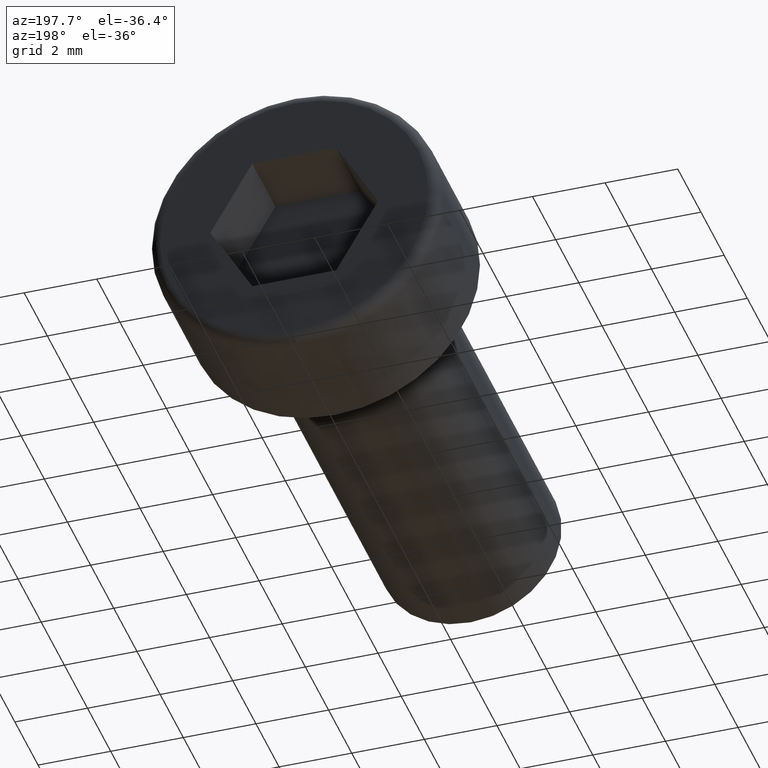
[diagram: clean part render]
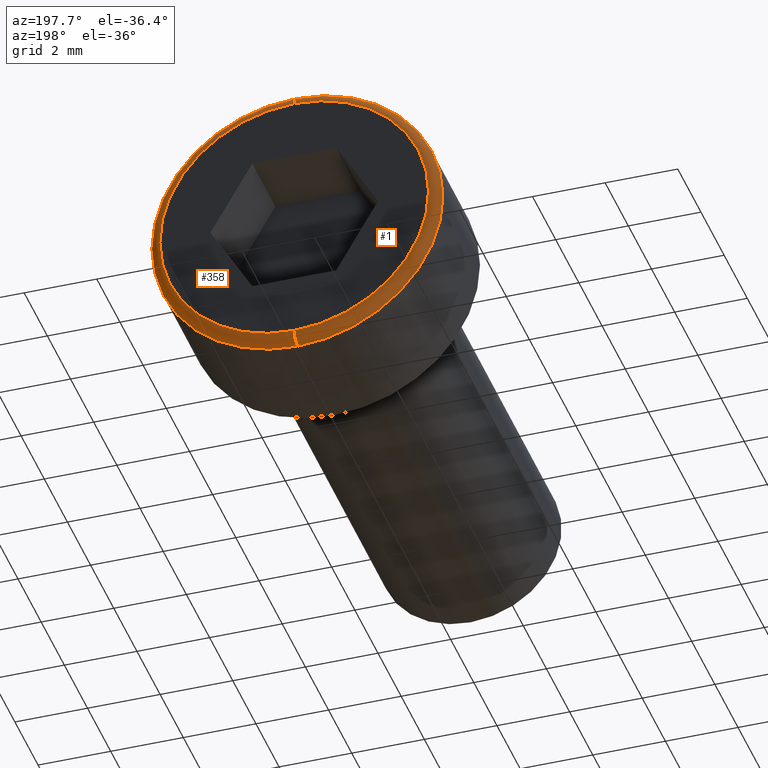
[diagram: same view with one multi-face feature highlighted, each face labeled with its STEP entity id]
A machine part, auxiliary view. The highlighted faces form ONE feature: a constant-radius fillet chain: 2 tangent blend faces with common blend radius 0.3 mm. The faces share edges in the B-rep.
Their STEP definitions:
[1] entity #1 (Torus):
#1 = ADVANCED_FACE ( 'NONE', ( #290 ), #406, .T. ) ;
#8 = CIRCLE ( 'NONE', #462, 0.2999999999999999300 ) ;
#11 = CIRCLE ( 'NONE', #463, 4.000000000000000000 ) ;
#18 = DIRECTION ( 'NONE',  ( 1.224646799147353200E-016, 0.0000000000000000000, -1.000000000000000000 ) ) ;
#19 = DIRECTION ( 'NONE',  ( 1.000000000000000000, -0.0000000000000000000, 1.224646799147353200E-016 ) ) ;
#20 = CARTESIAN_POINT ( 'NONE',  ( 4.531193156845206200E-016, 3.200000000000000200, -3.700000000000000200 ) ) ;
#46 = DIRECTION ( 'NONE',  ( 0.0000000000000000000, 0.0000000000000000000, 1.000000000000000000 ) ) ;
#48 = DIRECTION ( 'NONE',  ( -0.0000000000000000000, -1.000000000000000000, -0.0000000000000000000 ) ) ;
#52 = CARTESIAN_POINT ( 'NONE',  ( 0.0000000000000000000, 3.200000000000000200, 0.0000000000000000000 ) ) ;
#55 = DIRECTION ( 'NONE',  ( -1.000000000000000000, 0.0000000000000000000, 0.0000000000000000000 ) ) ;
#77 = CARTESIAN_POINT ( 'NONE',  ( 0.0000000000000000000, 3.200000000000000200, 3.700000000000000200 ) ) ;
#147 = DIRECTION ( 'NONE',  ( 0.0000000000000000000, 0.0000000000000000000, 1.000000000000000000 ) ) ;
#148 = DIRECTION ( 'NONE',  ( 0.0000000000000000000, 1.000000000000000000, 0.0000000000000000000 ) ) ;
#149 = CARTESIAN_POINT ( 'NONE',  ( 0.0000000000000000000, 3.500000000000000000, 0.0000000000000000000 ) ) ;
#185 = DIRECTION ( 'NONE',  ( 0.0000000000000000000, 0.0000000000000000000, 1.000000000000000000 ) ) ;
#187 = CARTESIAN_POINT ( 'NONE',  ( 0.0000000000000000000, 3.500000000000000000, 3.700000000000000200 ) ) ;
#200 = CARTESIAN_POINT ( 'NONE',  ( 4.714890176717309500E-016, 3.500000000000000000, -3.700000000000000200 ) ) ;
#202 = CARTESIAN_POINT ( 'NONE',  ( 4.898587196589412800E-016, 3.200000000000000200, 4.000000000000000000 ) ) ;
#209 = CIRCLE ( 'NONE', #471, 3.700000000000000200 ) ;
#290 = FACE_OUTER_BOUND ( 'NONE', #408, .T. ) ;
#291 = ORIENTED_EDGE ( 'NONE', *, *, #418, .T. ) ;
#293 = ORIENTED_EDGE ( 'NONE', *, *, #419, .F. ) ;
#295 = ORIENTED_EDGE ( 'NONE', *, *, #421, .F. ) ;
#296 = CIRCLE ( 'NONE', #465, 0.2999999999999999300 ) ;
#304 = DIRECTION ( 'NONE',  ( 0.0000000000000000000, 0.0000000000000000000, 1.000000000000000000 ) ) ;
#311 = CARTESIAN_POINT ( 'NONE',  ( 0.0000000000000000000, 3.200000000000000200, 0.0000000000000000000 ) ) ;
#312 = DIRECTION ( 'NONE',  ( 0.0000000000000000000, 1.000000000000000000, 0.0000000000000000000 ) ) ;
#315 = CARTESIAN_POINT ( 'NONE',  ( 0.0000000000000000000, 3.200000000000000200, -4.000000000000000000 ) ) ;
#320 = VERTEX_POINT ( 'NONE', #315 ) ;
#337 = VERTEX_POINT ( 'NONE', #202 ) ;
#340 = VERTEX_POINT ( 'NONE', #200 ) ;
#347 = VERTEX_POINT ( 'NONE', #187 ) ;
#406 = TOROIDAL_SURFACE ( 'NONE', #450, 3.700000000000000200, 0.2999999999999999900 ) ;
#408 = EDGE_LOOP ( 'NONE', ( #295, #293, #291, #523 ) ) ;
#418 = EDGE_CURVE ( 'NONE', #337, #347, #8, .T. ) ;
#419 = EDGE_CURVE ( 'NONE', #337, #320, #11, .T. ) ;
#421 = EDGE_CURVE ( 'NONE', #320, #340, #296, .T. ) ;
#435 = EDGE_CURVE ( 'NONE', #340, #347, #209, .T. ) ;
#450 = AXIS2_PLACEMENT_3D ( 'NONE', #311, #312, #304 ) ;
#462 = AXIS2_PLACEMENT_3D ( 'NONE', #77, #55, #185 ) ;
#463 = AXIS2_PLACEMENT_3D ( 'NONE', #52, #48, #46 ) ;
#465 = AXIS2_PLACEMENT_3D ( 'NONE', #20, #19, #18 ) ;
#471 = AXIS2_PLACEMENT_3D ( 'NONE', #149, #148, #147 ) ;
#523 = ORIENTED_EDGE ( 'NONE', *, *, #435, .F. ) ;
[2] entity #358 (Torus):
#8 = CIRCLE ( 'NONE', #462, 0.2999999999999999300 ) ;
#18 = DIRECTION ( 'NONE',  ( 1.224646799147353200E-016, 0.0000000000000000000, -1.000000000000000000 ) ) ;
#19 = DIRECTION ( 'NONE',  ( 1.000000000000000000, -0.0000000000000000000, 1.224646799147353200E-016 ) ) ;
#20 = CARTESIAN_POINT ( 'NONE',  ( 4.531193156845206200E-016, 3.200000000000000200, -3.700000000000000200 ) ) ;
#22 = DIRECTION ( 'NONE',  ( 0.0000000000000000000, 0.0000000000000000000, 1.000000000000000000 ) ) ;
#30 = DIRECTION ( 'NONE',  ( 0.0000000000000000000, 1.000000000000000000, 0.0000000000000000000 ) ) ;
#32 = CARTESIAN_POINT ( 'NONE',  ( 0.0000000000000000000, 3.500000000000000000, 0.0000000000000000000 ) ) ;
#55 = DIRECTION ( 'NONE',  ( -1.000000000000000000, 0.0000000000000000000, 0.0000000000000000000 ) ) ;
#77 = CARTESIAN_POINT ( 'NONE',  ( 0.0000000000000000000, 3.200000000000000200, 3.700000000000000200 ) ) ;
#151 = DIRECTION ( 'NONE',  ( 0.0000000000000000000, 0.0000000000000000000, 1.000000000000000000 ) ) ;
#158 = CARTESIAN_POINT ( 'NONE',  ( 0.0000000000000000000, 3.200000000000000200, 0.0000000000000000000 ) ) ;
#169 = DIRECTION ( 'NONE',  ( 0.0000000000000000000, 1.000000000000000000, 0.0000000000000000000 ) ) ;
#185 = DIRECTION ( 'NONE',  ( 0.0000000000000000000, 0.0000000000000000000, 1.000000000000000000 ) ) ;
#187 = CARTESIAN_POINT ( 'NONE',  ( 0.0000000000000000000, 3.500000000000000000, 3.700000000000000200 ) ) ;
#200 = CARTESIAN_POINT ( 'NONE',  ( 4.714890176717309500E-016, 3.500000000000000000, -3.700000000000000200 ) ) ;
#201 = DIRECTION ( 'NONE',  ( 0.0000000000000000000, 0.0000000000000000000, 1.000000000000000000 ) ) ;
#202 = CARTESIAN_POINT ( 'NONE',  ( 4.898587196589412800E-016, 3.200000000000000200, 4.000000000000000000 ) ) ;
#203 = DIRECTION ( 'NONE',  ( -0.0000000000000000000, -1.000000000000000000, -0.0000000000000000000 ) ) ;
#204 = CARTESIAN_POINT ( 'NONE',  ( 0.0000000000000000000, 3.200000000000000200, 0.0000000000000000000 ) ) ;
#296 = CIRCLE ( 'NONE', #465, 0.2999999999999999300 ) ;
#298 = CIRCLE ( 'NONE', #464, 3.700000000000000200 ) ;
#299 = CIRCLE ( 'NONE', #466, 4.000000000000000000 ) ;
#315 = CARTESIAN_POINT ( 'NONE',  ( 0.0000000000000000000, 3.200000000000000200, -4.000000000000000000 ) ) ;
#320 = VERTEX_POINT ( 'NONE', #315 ) ;
#337 = VERTEX_POINT ( 'NONE', #202 ) ;
#340 = VERTEX_POINT ( 'NONE', #200 ) ;
#347 = VERTEX_POINT ( 'NONE', #187 ) ;
#348 = EDGE_LOOP ( 'NONE', ( #371, #382, #363, #391 ) ) ;
#358 = ADVANCED_FACE ( 'NONE', ( #551 ), #546, .T. ) ;
#363 = ORIENTED_EDGE ( 'NONE', *, *, #420, .F. ) ;
#371 = ORIENTED_EDGE ( 'NONE', *, *, #422, .F. ) ;
#382 = ORIENTED_EDGE ( 'NONE', *, *, #421, .T. ) ;
#391 = ORIENTED_EDGE ( 'NONE', *, *, #418, .F. ) ;
#418 = EDGE_CURVE ( 'NONE', #337, #347, #8, .T. ) ;
#420 = EDGE_CURVE ( 'NONE', #347, #340, #298, .T. ) ;
#421 = EDGE_CURVE ( 'NONE', #320, #340, #296, .T. ) ;
#422 = EDGE_CURVE ( 'NONE', #320, #337, #299, .T. ) ;
#453 = AXIS2_PLACEMENT_3D ( 'NONE', #158, #169, #151 ) ;
#462 = AXIS2_PLACEMENT_3D ( 'NONE', #77, #55, #185 ) ;
#464 = AXIS2_PLACEMENT_3D ( 'NONE', #32, #30, #22 ) ;
#465 = AXIS2_PLACEMENT_3D ( 'NONE', #20, #19, #18 ) ;
#466 = AXIS2_PLACEMENT_3D ( 'NONE', #204, #203, #201 ) ;
#546 = TOROIDAL_SURFACE ( 'NONE', #453, 3.700000000000000200, 0.2999999999999999900 ) ;
#551 = FACE_OUTER_BOUND ( 'NONE', #348, .T. ) ;